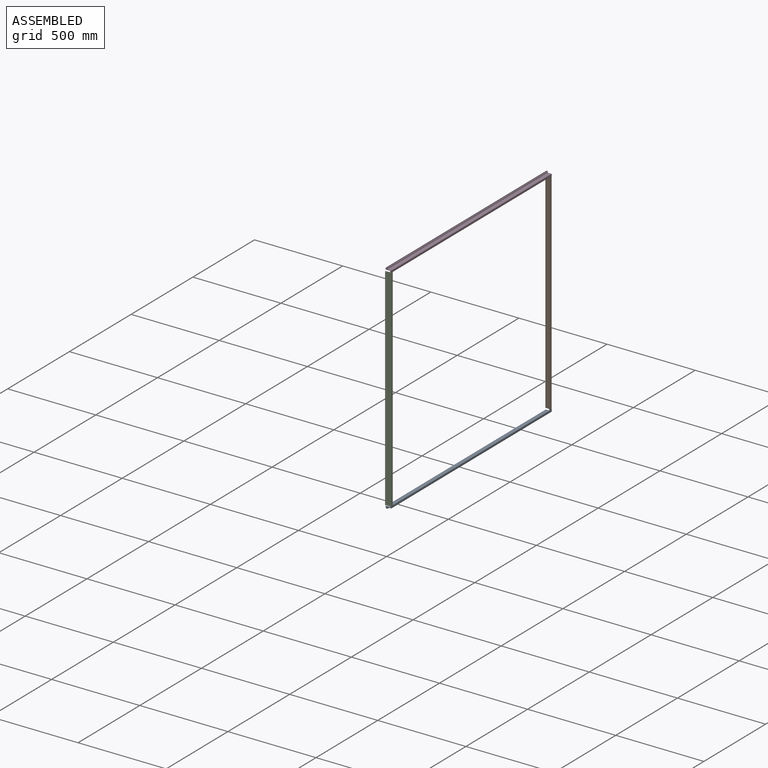
[diagram: assembled view]
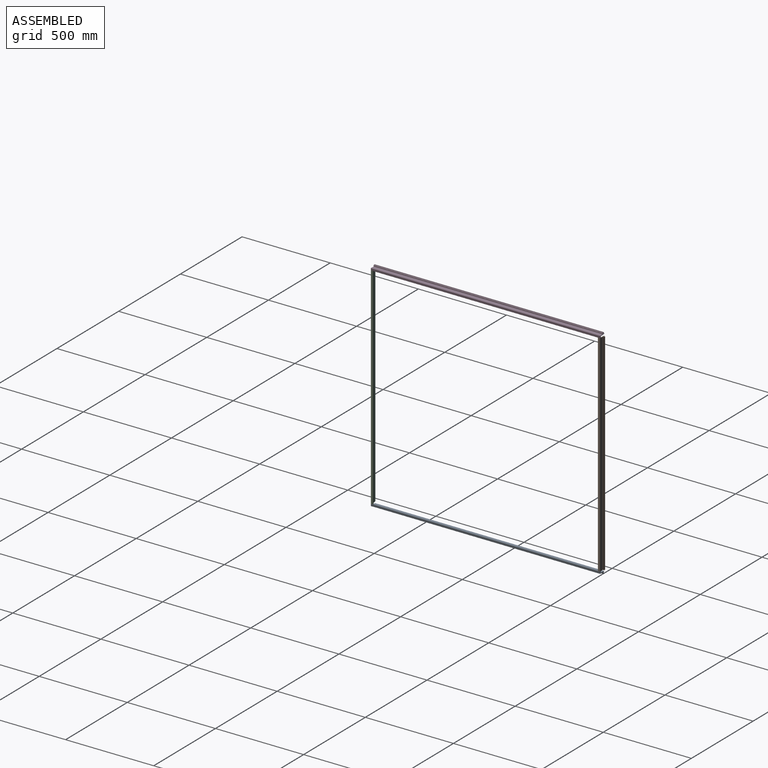
[diagram: assembled view, second angle]
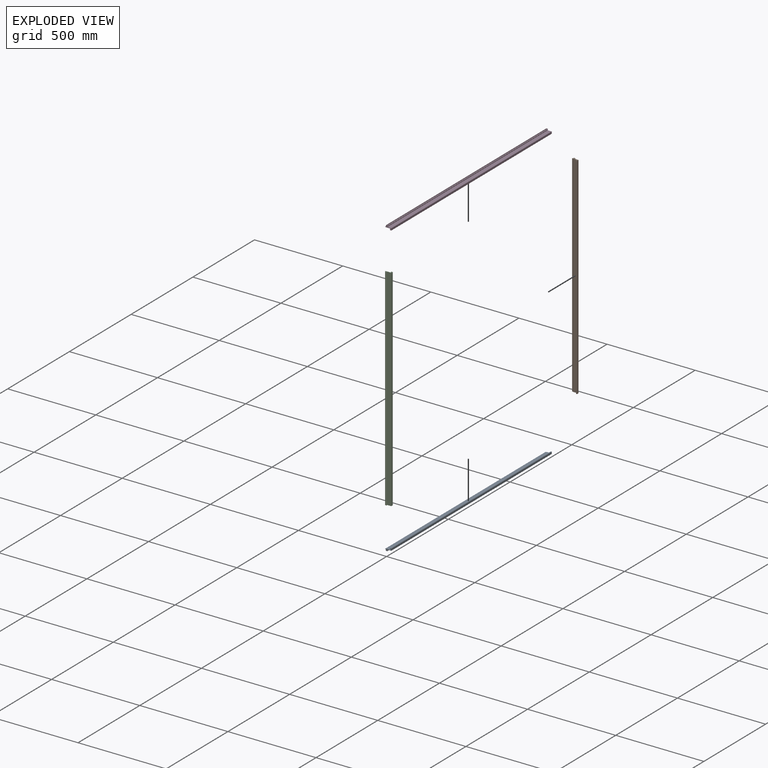
[diagram: exploded view]
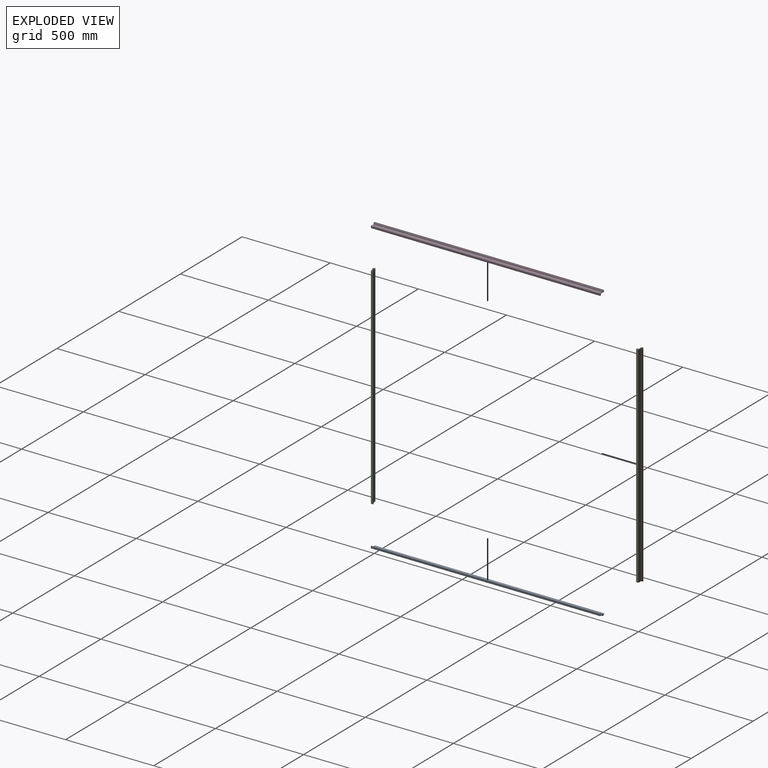
[diagram: exploded view, second angle]
ASSEMBLY  parts=4 mates=9
PART A: 44 faces, bbox 35x1300x20.8 mm
  f0: cylinder r=0.3mm len=1300mm, axis (0,-1,0), area 1288.6mm2, adj f24,f25,f42,f43
  f1: plane 1300x3.6mm, normal (0,0,-1), area 4680mm2, adj f2,f41,f42,f43
  f2: cylinder r=0.2mm len=1300mm, axis (0,-1,0), area 408.4mm2, adj f1,f3,f42,f43
  f3: plane 1300x8.4mm, normal (1,0,0), area 10920mm2, adj f2,f4,f42,f43
  f4: cylinder r=0.2mm len=1300mm, axis (0,-1,0), area 408.4mm2, adj f3,f5,f42,f43
  f5: plane 1300x0.08mm, normal (0,0,-1), area 109.9mm2, adj f4,f6,f42,f43
  f6: cylinder r=0.2mm len=1300mm, axis (0,-1,0), area 272.3mm2, adj f5,f7,f42,f43
  f7: plane 1300x4.45mm, normal (-0.87,0,-0.5), area 6672.6mm2, adj f6,f8,f42,f43
  f8: cylinder r=0.2mm len=1300mm, axis (0,-1,0), area 337.6mm2, adj f7,f9,f42,f43
  f9: plane 1300x0.96mm, normal (-0.71,0,0.7), area 1740.6mm2, adj f8,f10,f42,f43
  f10: cylinder r=0.2mm len=1300mm, axis (0,-1,0), area 201.5mm2, adj f9,f11,f42,f43
  f11: plane 1300x2.72mm, normal (-1,0,0), area 3533.9mm2, adj f10,f12,f42,f43
  f12: cylinder r=0.2mm len=1300mm, axis (0,-1,0), area 408.4mm2, adj f11,f13,f42,f43
  f13: plane 1300x3.8mm, normal (0,0,-1), area 4940mm2, adj f12,f14,f42,f43
  f14: cylinder r=0.5mm len=1300mm, axis (0,-1,0), area 1021mm2, adj f13,f15,f42,f43
  f15: plane 1300x0.58mm, normal (-1,0,0), area 756.2mm2, adj f14,f16,f42,f43
  f16: cylinder r=0.5mm len=1300mm, axis (0,-1,0), area 907.6mm2, adj f15,f17,f42,f43
  f17: plane 1300x7.66mm, normal (-0.17,0,0.98), area 10106.4mm2, adj f16,f18,f42,f43
  f18: cylinder r=5mm len=1300mm, axis (0,-1,0), area 1134.5mm2, adj f17,f19,f42,f43
  f19: plane 1300x22.06mm, normal (0,0,1), area 28681.3mm2, adj f18,f20,f42,f43
  f20: cylinder r=1mm len=1300mm, axis (0,-1,0), area 2042mm2, adj f19,f21,f42,f43
  f21: plane 1300x7mm, normal (-1,0,0), area 9100mm2, adj f20,f22,f42,f43
  f22: plane 1300x1mm, normal (0,0,-1), area 1300mm2, adj f21,f23,f42,f43
  f23: cylinder r=3mm len=1300mm, axis (0,-1,0), area 8128.5mm2, adj f22,f24,f42,f43
  f24: cylinder r=6.4mm len=1300mm, axis (0,-1,0), area 3061.6mm2, adj f0,f23,f42,f43
  f25: cylinder r=4mm len=1300mm, axis (0,-1,0), area 14301.3mm2, adj f0,f26,f42,f43
  f26: plane 1300x3.5mm, normal (0,0,1), area 4550mm2, adj f25,f27,f42,f43
  f27: cylinder r=0.5mm len=1300mm, axis (0,-1,0), area 1021mm2, adj f26,f28,f42,f43
  f28: plane 1300x11mm, normal (1,0,0), area 14300mm2, adj f27,f29,f42,f43
  f29: cylinder r=0.5mm len=1300mm, axis (0,-1,0), area 1021mm2, adj f28,f30,f42,f43
  f30: plane 1300x21.8mm, normal (0,0,-1), area 28340mm2, adj f29,f31,f42,f43
  f31: cylinder r=0.2mm len=1300mm, axis (0,-1,0), area 408.4mm2, adj f30,f32,f42,f43
  f32: plane 1300x2.72mm, normal (1,0,0), area 3533.9mm2, adj f31,f33,f42,f43
  f33: cylinder r=0.2mm len=1300mm, axis (0,-1,0), area 201.5mm2, adj f32,f34,f42,f43
  f34: plane 1300x0.96mm, normal (0.71,0,0.7), area 1740.6mm2, adj f33,f35,f42,f43
  f35: cylinder r=0.2mm len=1300mm, axis (0,-1,0), area 337.6mm2, adj f34,f36,f42,f43
  f36: plane 1300x4.45mm, normal (0.87,0,-0.5), area 6672.6mm2, adj f35,f37,f42,f43
  f37: cylinder r=0.2mm len=1300mm, axis (0,-1,0), area 272.3mm2, adj f36,f38,f42,f43
  f38: plane 1300x0.08mm, normal (0,0,-1), area 109.9mm2, adj f37,f39,f42,f43
  f39: cylinder r=0.2mm len=1300mm, axis (0,-1,0), area 408.4mm2, adj f38,f40,f42,f43
  f40: plane 1300x8.4mm, normal (-1,0,0), area 10920mm2, adj f39,f41,f42,f43
  f41: cylinder r=0.2mm len=1300mm, axis (0,-1,0), area 408.4mm2, adj f1,f40,f42,f43
  f42: plane 35x20.8mm, normal (0,-1,0), area 170.3mm2, adj f0,f1,f2,f3,f4,f5,f6,f7
  f43: plane 35x20.8mm, normal (0,1,0), area 170.3mm2, adj f0,f1,f2,f3,f4,f5,f6,f7
PART B: 44 faces, bbox 35x1196x20.8 mm
  f0: cylinder r=0.3mm len=1196mm, axis (0,-1,0), area 1185.5mm2, adj f24,f25,f42,f43
  f1: plane 1196x3.6mm, normal (0,0,-1), area 4305.6mm2, adj f2,f41,f42,f43
  f2: cylinder r=0.2mm len=1196mm, axis (0,-1,0), area 375.7mm2, adj f1,f3,f42,f43
  f3: plane 1196x8.4mm, normal (1,0,0), area 10046.4mm2, adj f2,f4,f42,f43
  f4: cylinder r=0.2mm len=1196mm, axis (0,-1,0), area 375.7mm2, adj f3,f5,f42,f43
  f5: plane 1196x0.08mm, normal (0,0,-1), area 101.1mm2, adj f4,f6,f42,f43
  f6: cylinder r=0.2mm len=1196mm, axis (0,-1,0), area 250.5mm2, adj f5,f7,f42,f43
  f7: plane 1196x4.45mm, normal (-0.87,0,-0.5), area 6138.7mm2, adj f6,f8,f42,f43
  f8: cylinder r=0.2mm len=1196mm, axis (0,-1,0), area 310.6mm2, adj f7,f9,f42,f43
  f9: plane 1196x0.96mm, normal (-0.71,0,0.7), area 1601.3mm2, adj f8,f10,f42,f43
  f10: cylinder r=0.2mm len=1196mm, axis (0,-1,0), area 185.3mm2, adj f9,f11,f42,f43
  f11: plane 1196x2.72mm, normal (-1,0,0), area 3251.2mm2, adj f10,f12,f42,f43
  f12: cylinder r=0.2mm len=1196mm, axis (0,-1,0), area 375.7mm2, adj f11,f13,f42,f43
  f13: plane 1196x3.8mm, normal (0,0,-1), area 4544.8mm2, adj f12,f14,f42,f43
  f14: cylinder r=0.5mm len=1196mm, axis (0,-1,0), area 939.3mm2, adj f13,f15,f42,f43
  f15: plane 1196x0.58mm, normal (-1,0,0), area 695.7mm2, adj f14,f16,f42,f43
  f16: cylinder r=0.5mm len=1196mm, axis (0,-1,0), area 835mm2, adj f15,f17,f42,f43
  f17: plane 1196x7.66mm, normal (-0.17,0,0.98), area 9297.9mm2, adj f16,f18,f42,f43
  f18: cylinder r=5mm len=1196mm, axis (0,-1,0), area 1043.7mm2, adj f17,f19,f42,f43
  f19: plane 1196x22.06mm, normal (0,0,1), area 26386.8mm2, adj f18,f20,f42,f43
  f20: cylinder r=1mm len=1196mm, axis (0,-1,0), area 1878.7mm2, adj f19,f21,f42,f43
  f21: plane 1196x7mm, normal (-1,0,0), area 8372mm2, adj f20,f22,f42,f43
  f22: plane 1196x1mm, normal (0,0,-1), area 1196mm2, adj f21,f23,f42,f43
  f23: cylinder r=3mm len=1196mm, axis (0,-1,0), area 7478.2mm2, adj f22,f24,f42,f43
  f24: cylinder r=6.4mm len=1196mm, axis (0,-1,0), area 2816.7mm2, adj f0,f23,f42,f43
  f25: cylinder r=4mm len=1196mm, axis (0,-1,0), area 13157.2mm2, adj f0,f26,f42,f43
  f26: plane 1196x3.5mm, normal (0,0,1), area 4186mm2, adj f25,f27,f42,f43
  f27: cylinder r=0.5mm len=1196mm, axis (0,-1,0), area 939.3mm2, adj f26,f28,f42,f43
  f28: plane 1196x11mm, normal (1,0,0), area 13156mm2, adj f27,f29,f42,f43
  f29: cylinder r=0.5mm len=1196mm, axis (0,-1,0), area 939.3mm2, adj f28,f30,f42,f43
  f30: plane 1196x21.8mm, normal (0,0,-1), area 26072.8mm2, adj f29,f31,f42,f43
  f31: cylinder r=0.2mm len=1196mm, axis (0,-1,0), area 375.7mm2, adj f30,f32,f42,f43
  f32: plane 1196x2.72mm, normal (1,0,0), area 3251.2mm2, adj f31,f33,f42,f43
  f33: cylinder r=0.2mm len=1196mm, axis (0,-1,0), area 185.3mm2, adj f32,f34,f42,f43
  f34: plane 1196x0.96mm, normal (0.71,0,0.7), area 1601.3mm2, adj f33,f35,f42,f43
  f35: cylinder r=0.2mm len=1196mm, axis (0,-1,0), area 310.6mm2, adj f34,f36,f42,f43
  f36: plane 1196x4.45mm, normal (0.87,0,-0.5), area 6138.7mm2, adj f35,f37,f42,f43
  f37: cylinder r=0.2mm len=1196mm, axis (0,-1,0), area 250.5mm2, adj f36,f38,f42,f43
  f38: plane 1196x0.08mm, normal (0,0,-1), area 101.1mm2, adj f37,f39,f42,f43
  f39: cylinder r=0.2mm len=1196mm, axis (0,-1,0), area 375.7mm2, adj f38,f40,f42,f43
  f40: plane 1196x8.4mm, normal (-1,0,0), area 10046.4mm2, adj f39,f41,f42,f43
  f41: cylinder r=0.2mm len=1196mm, axis (0,-1,0), area 375.7mm2, adj f1,f40,f42,f43
  f42: plane 35x20.8mm, normal (0,-1,0), area 170.3mm2, adj f0,f1,f2,f3,f4,f5,f6,f7
  f43: plane 35x20.8mm, normal (0,1,0), area 170.3mm2, adj f0,f1,f2,f3,f4,f5,f6,f7
PART C: same geometry as B
PART D: same geometry as A
PLACE A at identity fixed
PLACE B rot(axis=(1,0,0),90deg) t=(0,1300,12)mm
PLACE C rot(axis=(-1,0,0),90deg) t=(0,0,1208)mm
PLACE D rot(axis=(1,0,0),180deg) t=(0,1300,1220)mm
MATE planar C.f30 <-> A.f42  axis (0,-1,0) through (15.1,0,12)mm
MATE planar C.f43 <-> A.f26  axis (0,0,-1) through (11,1.78,12)mm
MATE planar B.f28 <-> A.f28  axis (1,0,0) through (26.5,1294,12)mm
MATE planar B.f30 <-> A.f43  axis (0,1,0) through (15.1,1300,12)mm
MATE planar C.f28 <-> A.f28  axis (1,0,0) through (26.5,6,12)mm
MATE planar D.f43 <-> C.f30  axis (0,-1,0) through (11,0,1218.22)mm
MATE planar B.f23 <-> A.f26  axis (0,0,-1) through (22.5,1292,12)mm
MATE planar D.f28 <-> C.f28  axis (1,0,0) through (26.5,0,1214)mm
MATE planar D.f26 <-> C.f42  axis (0,0,-1) through (24.25,1300,1208)mm
